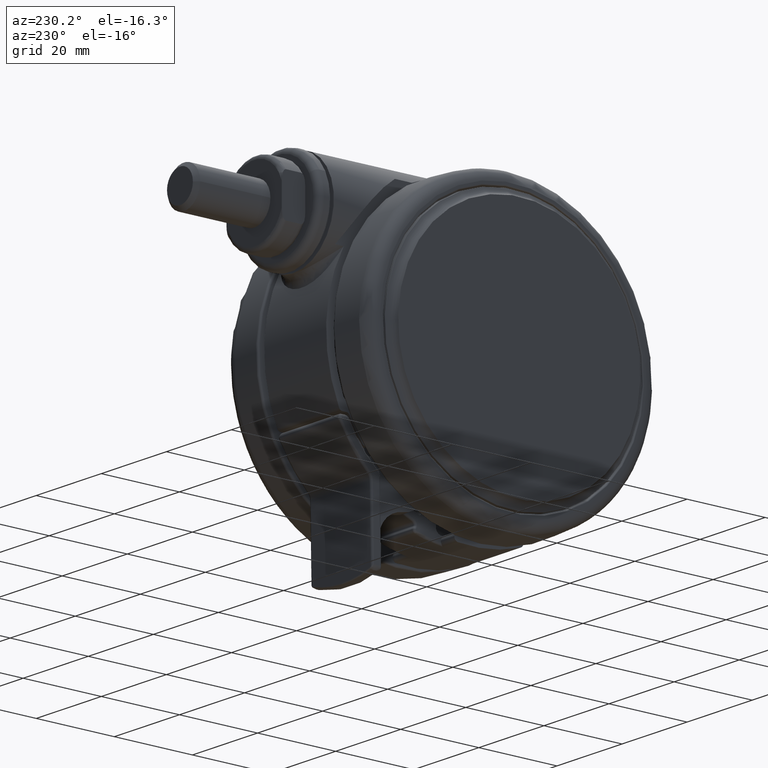
[diagram: clean part render]
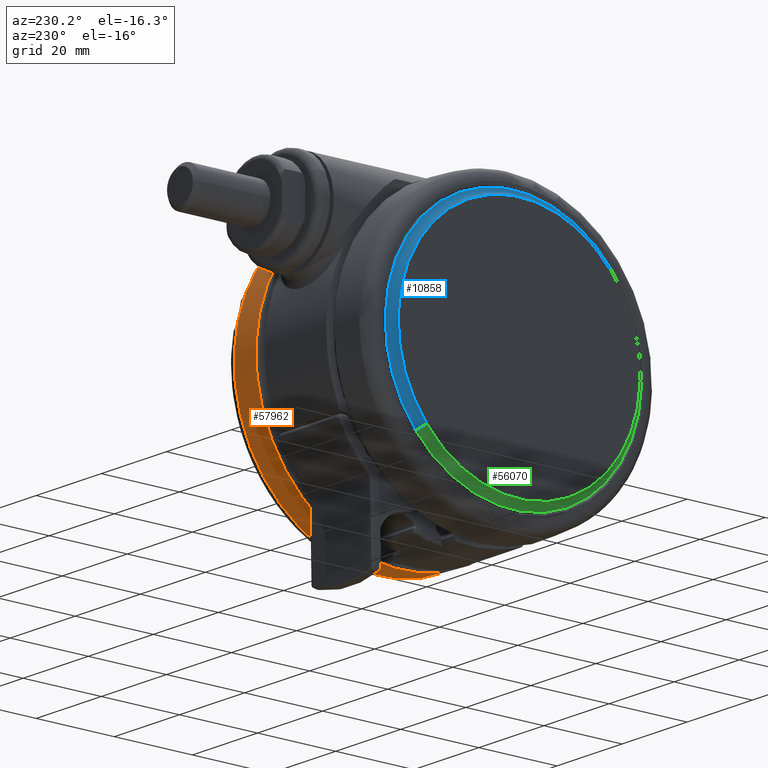
[diagram: same view with three faces highlighted in distinct colors, each labeled with its STEP entity id]
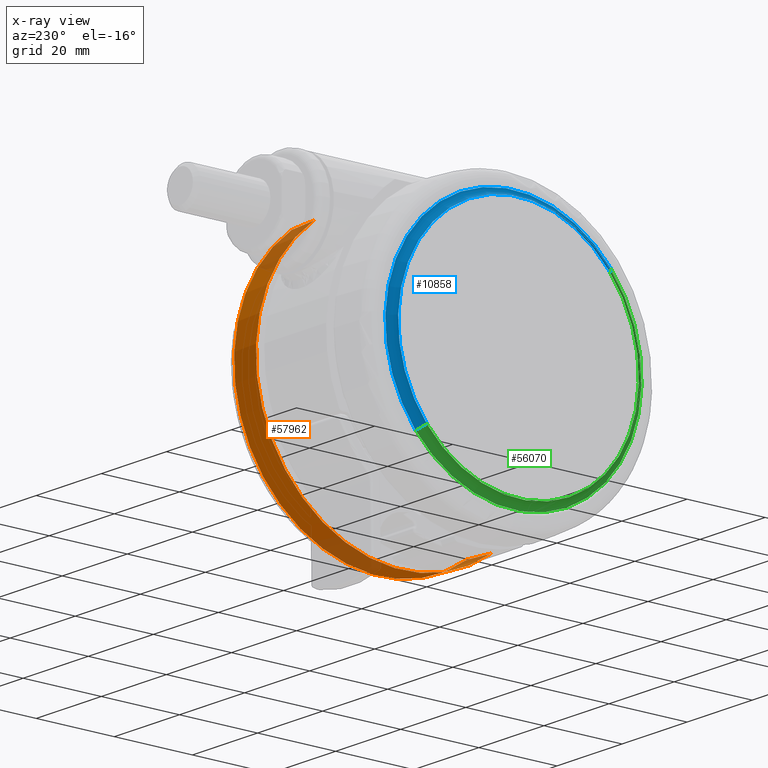
[diagram: x-ray of the same camera — body ghosted, the three highlighted faces saturated]
A machine part, auxiliary view with three faces highlighted in distinct colors.
The next image is the same camera in x-ray (body ghosted, the three faces saturated) — at least one of them is partly hidden behind the body in this view.
Their STEP definitions:

[orange] entity #57962 — the highlighted conical surface has half-angle 3 deg.
#2968 = CARTESIAN_POINT ( 'NONE',  ( -1.467404372658370700E-013, 37.12628851691043500, -4.642992131271127800 ) ) ;
#8844 = ORIENTED_EDGE ( 'NONE', *, *, #24183, .F. ) ;
#8915 = ORIENTED_EDGE ( 'NONE', *, *, #49488, .F. ) ;
#11804 = CIRCLE ( 'NONE', #66705, 37.50000000000000700 ) ;
#12846 = VECTOR ( 'NONE', #26358, 1000.000000000000100 ) ;
#14741 = DIRECTION ( 'NONE',  ( 0.0000000000000000000, 0.0000000000000000000, 1.000000000000000000 ) ) ;
#15458 = CARTESIAN_POINT ( 'NONE',  ( 6.453171330633721100E-014, -37.49999999999996400, -11.77383202187847600 ) ) ;
#21284 = DIRECTION ( 'NONE',  ( 0.0000000000000000000, 0.0000000000000000000, 1.000000000000000000 ) ) ;
#24183 = EDGE_CURVE ( 'NONE', #69655, #40656, #70456, .T. ) ;
#25060 = VECTOR ( 'NONE', #40124, 1000.000000000000100 ) ;
#26358 = DIRECTION ( 'NONE',  ( 1.481666882735434000E-016, -0.05233595624293731200, -0.9986295347545742800 ) ) ;
#27557 = CARTESIAN_POINT ( 'NONE',  ( -1.523908656500265200E-013, 37.50000000000005000, -11.77383202187847600 ) ) ;
#28587 = CARTESIAN_POINT ( 'NONE',  ( -4.163336342344337000E-014, 4.163336342344337000E-014, -4.642992131271127800 ) ) ;
#33860 = VERTEX_POINT ( 'NONE', #15458 ) ;
#33913 = ORIENTED_EDGE ( 'NONE', *, *, #49795, .T. ) ;
#40124 = DIRECTION ( 'NONE',  ( -1.545759944028662900E-016, 0.05233595624293731200, -0.9986295347545742800 ) ) ;
#40656 = VERTEX_POINT ( 'NONE', #27557 ) ;
#41186 = FACE_OUTER_BOUND ( 'NONE', #63360, .T. ) ;
#43016 = CIRCLE ( 'NONE', #64308, 37.12628851691040000 ) ;
#43111 = LINE ( 'NONE', #54718, #12846 ) ;
#48839 = CARTESIAN_POINT ( 'NONE',  ( -4.163336342344337000E-014, 4.163336342344337000E-014, -11.77383202187847600 ) ) ;
#49488 = EDGE_CURVE ( 'NONE', #52232, #69655, #43016, .T. ) ;
#49795 = EDGE_CURVE ( 'NONE', #33860, #40656, #11804, .T. ) ;
#50086 = ORIENTED_EDGE ( 'NONE', *, *, #68594, .T. ) ;
#51232 = DIRECTION ( 'NONE',  ( 0.0000000000000000000, 0.0000000000000000000, -1.000000000000000000 ) ) ;
#52232 = VERTEX_POINT ( 'NONE', #67287 ) ;
#52747 = CONICAL_SURFACE ( 'NONE', #65989, 37.12628851691040000, 0.05235987755982334000 ) ;
#54556 = DIRECTION ( 'NONE',  ( -2.831068712794148000E-015, 1.000000000000000000, 0.0000000000000000000 ) ) ;
#54718 = CARTESIAN_POINT ( 'NONE',  ( 6.347371041895032700E-014, -37.12628851691035700, -4.642992131271127800 ) ) ;
#55355 = CARTESIAN_POINT ( 'NONE',  ( -4.163336342344337000E-014, 4.163336342344337000E-014, -4.642992131271127800 ) ) ;
#57283 = CARTESIAN_POINT ( 'NONE',  ( -1.512870963054826100E-013, 37.12628851691043500, -4.642992131271127800 ) ) ;
#57962 = ADVANCED_FACE ( 'NONE', ( #41186 ), #52747, .T. ) ;
#61056 = DIRECTION ( 'NONE',  ( -2.831068712794148000E-015, 1.000000000000000000, 0.0000000000000000000 ) ) ;
#63360 = EDGE_LOOP ( 'NONE', ( #8844, #8915, #50086, #33913 ) ) ;
#64308 = AXIS2_PLACEMENT_3D ( 'NONE', #55355, #21284, #61056 ) ;
#65989 = AXIS2_PLACEMENT_3D ( 'NONE', #28587, #51232, #68349 ) ;
#66705 = AXIS2_PLACEMENT_3D ( 'NONE', #48839, #14741, #54556 ) ;
#67287 = CARTESIAN_POINT ( 'NONE',  ( 5.892705137930479800E-014, -37.12628851691035700, -4.642992131271127800 ) ) ;
#68349 = DIRECTION ( 'NONE',  ( 2.831068712794148400E-015, -1.000000000000000000, 0.0000000000000000000 ) ) ;
#68594 = EDGE_CURVE ( 'NONE', #52232, #33860, #43111, .T. ) ;
#69655 = VERTEX_POINT ( 'NONE', #2968 ) ;
#70456 = LINE ( 'NONE', #57283, #25060 ) ;

[blue] entity #10858 — the highlighted toroidal blend (fillet) surface has major radius 33.1663 mm and minor (blend) radius 2.2 mm.
#2661 = EDGE_CURVE ( 'NONE', #25517, #73681, #65243, .T. ) ;
#6063 = AXIS2_PLACEMENT_3D ( 'NONE', #41617, #7489, #47339 ) ;
#7489 = DIRECTION ( 'NONE',  ( 0.0000000000000000000, 0.0000000000000000000, -1.000000000000000000 ) ) ;
#9074 = CARTESIAN_POINT ( 'NONE',  ( 6.938893903907228400E-015, 0.0000000000000000000, -48.08382838746730700 ) ) ;
#10858 = ADVANCED_FACE ( 'NONE', ( #59094 ), #15519, .F. ) ;
#15519 = TOROIDAL_SURFACE ( 'NONE', #67847, 33.16625847233755300, 2.200000000000000200 ) ;
#19771 = CARTESIAN_POINT ( 'NONE',  ( -33.11334810414143700, 1.872666117559304900, -48.08382838746730700 ) ) ;
#22185 = EDGE_CURVE ( 'NONE', #40390, #73681, #68951, .T. ) ;
#25485 = DIRECTION ( 'NONE',  ( 0.9984046928826705300, -0.05646298991251031500, 0.0000000000000000000 ) ) ;
#25517 = VERTEX_POINT ( 'NONE', #67993 ) ;
#27294 = CARTESIAN_POINT ( 'NONE',  ( 32.76357280385211400, -1.852885201671516000, -45.91190160355296300 ) ) ;
#29169 = CARTESIAN_POINT ( 'NONE',  ( 33.11334810414145100, -1.872666117559300900, -48.08382838746730700 ) ) ;
#33592 = DIRECTION ( 'NONE',  ( 0.0000000000000000000, 0.0000000000000000000, -1.000000000000000000 ) ) ;
#34752 = EDGE_CURVE ( 'NONE', #51684, #40390, #46589, .T. ) ;
#34877 = DIRECTION ( 'NONE',  ( -0.9984046928826705300, 0.05646298991251022500, 0.0000000000000000000 ) ) ;
#36038 = AXIS2_PLACEMENT_3D ( 'NONE', #19771, #59534, #25485 ) ;
#36497 = CARTESIAN_POINT ( 'NONE',  ( -30.95054547936278400, 1.750352687287819900, -47.69999999999990300 ) ) ;
#40390 = VERTEX_POINT ( 'NONE', #58856 ) ;
#41576 = ORIENTED_EDGE ( 'NONE', *, *, #22185, .T. ) ;
#41617 = CARTESIAN_POINT ( 'NONE',  ( 6.938893903907228400E-015, 0.0000000000000000000, -47.69999999999990300 ) ) ;
#44997 = ORIENTED_EDGE ( 'NONE', *, *, #70974, .F. ) ;
#46589 = CIRCLE ( 'NONE', #36038, 2.199999999999999700 ) ;
#47339 = DIRECTION ( 'NONE',  ( -0.9984046928826705300, 0.05646298991251030900, 0.0000000000000000000 ) ) ;
#51684 = VERTEX_POINT ( 'NONE', #36497 ) ;
#54625 = DIRECTION ( 'NONE',  ( 0.0000000000000000000, 0.0000000000000000000, -1.000000000000000000 ) ) ;
#55266 = CIRCLE ( 'NONE', #6063, 30.99999999999999600 ) ;
#57660 = ORIENTED_EDGE ( 'NONE', *, *, #34752, .T. ) ;
#58856 = CARTESIAN_POINT ( 'NONE',  ( -32.76357280385209900, 1.852885201671519800, -45.91190160355296300 ) ) ;
#59094 = FACE_OUTER_BOUND ( 'NONE', #71893, .T. ) ;
#59534 = DIRECTION ( 'NONE',  ( -0.05646298991251032200, -0.9984046928826707500, -0.0000000000000000000 ) ) ;
#60144 = AXIS2_PLACEMENT_3D ( 'NONE', #29169, #68922, #34877 ) ;
#60261 = AXIS2_PLACEMENT_3D ( 'NONE', #67677, #33592, #73413 ) ;
#65243 = CIRCLE ( 'NONE', #60144, 2.199999999999999700 ) ;
#66073 = DIRECTION ( 'NONE',  ( -0.9984046928826705300, 0.05646298991251030200, 0.0000000000000000000 ) ) ;
#67677 = CARTESIAN_POINT ( 'NONE',  ( 6.938893903907228400E-015, 0.0000000000000000000, -45.91190160355296300 ) ) ;
#67847 = AXIS2_PLACEMENT_3D ( 'NONE', #9074, #54625, #66073 ) ;
#67993 = CARTESIAN_POINT ( 'NONE',  ( 30.95054547936279800, -1.750352687287816100, -47.69999999999990300 ) ) ;
#68922 = DIRECTION ( 'NONE',  ( 0.05646298991251019700, 0.9984046928826707500, 0.0000000000000000000 ) ) ;
#68951 = CIRCLE ( 'NONE', #60261, 32.81592428140524500 ) ;
#70974 = EDGE_CURVE ( 'NONE', #51684, #25517, #55266, .T. ) ;
#71821 = ORIENTED_EDGE ( 'NONE', *, *, #2661, .F. ) ;
#71893 = EDGE_LOOP ( 'NONE', ( #71821, #44997, #57660, #41576 ) ) ;
#73413 = DIRECTION ( 'NONE',  ( -0.9984046928826706400, 0.05646298991251031500, 0.0000000000000000000 ) ) ;
#73681 = VERTEX_POINT ( 'NONE', #27294 ) ;

[green] entity #56070 — the highlighted toroidal blend (fillet) surface has major radius 33.1663 mm and minor (blend) radius 2.2 mm.
#2661 = EDGE_CURVE ( 'NONE', #25517, #73681, #65243, .T. ) ;
#3757 = CIRCLE ( 'NONE', #34324, 32.81592428140524500 ) ;
#11132 = FACE_OUTER_BOUND ( 'NONE', #11510, .T. ) ;
#11510 = EDGE_LOOP ( 'NONE', ( #27031, #68579, #69801, #17423 ) ) ;
#12049 = CARTESIAN_POINT ( 'NONE',  ( 6.938893903907228400E-015, 0.0000000000000000000, -45.91190160355296300 ) ) ;
#13146 = DIRECTION ( 'NONE',  ( -0.9984046928826705300, 0.05646298991251030200, 0.0000000000000000000 ) ) ;
#16390 = EDGE_CURVE ( 'NONE', #25517, #51684, #48361, .T. ) ;
#17423 = ORIENTED_EDGE ( 'NONE', *, *, #34752, .F. ) ;
#17827 = DIRECTION ( 'NONE',  ( -0.9984046928826706400, 0.05646298991251031500, 0.0000000000000000000 ) ) ;
#19771 = CARTESIAN_POINT ( 'NONE',  ( -33.11334810414143700, 1.872666117559304900, -48.08382838746730700 ) ) ;
#25485 = DIRECTION ( 'NONE',  ( 0.9984046928826705300, -0.05646298991251031500, 0.0000000000000000000 ) ) ;
#25517 = VERTEX_POINT ( 'NONE', #67993 ) ;
#27031 = ORIENTED_EDGE ( 'NONE', *, *, #16390, .F. ) ;
#27294 = CARTESIAN_POINT ( 'NONE',  ( 32.76357280385211400, -1.852885201671516000, -45.91190160355296300 ) ) ;
#29169 = CARTESIAN_POINT ( 'NONE',  ( 33.11334810414145100, -1.872666117559300900, -48.08382838746730700 ) ) ;
#29324 = EDGE_CURVE ( 'NONE', #73681, #40390, #3757, .T. ) ;
#32779 = DIRECTION ( 'NONE',  ( 0.0000000000000000000, 0.0000000000000000000, -1.000000000000000000 ) ) ;
#34324 = AXIS2_PLACEMENT_3D ( 'NONE', #12049, #51908, #17827 ) ;
#34752 = EDGE_CURVE ( 'NONE', #51684, #40390, #46589, .T. ) ;
#34877 = DIRECTION ( 'NONE',  ( -0.9984046928826705300, 0.05646298991251022500, 0.0000000000000000000 ) ) ;
#35815 = CARTESIAN_POINT ( 'NONE',  ( 6.938893903907228400E-015, 0.0000000000000000000, -48.08382838746730700 ) ) ;
#36038 = AXIS2_PLACEMENT_3D ( 'NONE', #19771, #59534, #25485 ) ;
#36497 = CARTESIAN_POINT ( 'NONE',  ( -30.95054547936278400, 1.750352687287819900, -47.69999999999990300 ) ) ;
#40390 = VERTEX_POINT ( 'NONE', #58856 ) ;
#44988 = TOROIDAL_SURFACE ( 'NONE', #54432, 33.16625847233755300, 2.200000000000000200 ) ;
#46589 = CIRCLE ( 'NONE', #36038, 2.199999999999999700 ) ;
#48361 = CIRCLE ( 'NONE', #52360, 30.99999999999999600 ) ;
#51684 = VERTEX_POINT ( 'NONE', #36497 ) ;
#51908 = DIRECTION ( 'NONE',  ( 0.0000000000000000000, 0.0000000000000000000, -1.000000000000000000 ) ) ;
#52360 = AXIS2_PLACEMENT_3D ( 'NONE', #66856, #32779, #72589 ) ;
#54432 = AXIS2_PLACEMENT_3D ( 'NONE', #35815, #64182, #13146 ) ;
#56070 = ADVANCED_FACE ( 'NONE', ( #11132 ), #44988, .F. ) ;
#58856 = CARTESIAN_POINT ( 'NONE',  ( -32.76357280385209900, 1.852885201671519800, -45.91190160355296300 ) ) ;
#59534 = DIRECTION ( 'NONE',  ( -0.05646298991251032200, -0.9984046928826707500, -0.0000000000000000000 ) ) ;
#60144 = AXIS2_PLACEMENT_3D ( 'NONE', #29169, #68922, #34877 ) ;
#64182 = DIRECTION ( 'NONE',  ( 0.0000000000000000000, 0.0000000000000000000, -1.000000000000000000 ) ) ;
#65243 = CIRCLE ( 'NONE', #60144, 2.199999999999999700 ) ;
#66856 = CARTESIAN_POINT ( 'NONE',  ( 6.938893903907228400E-015, 0.0000000000000000000, -47.69999999999990300 ) ) ;
#67993 = CARTESIAN_POINT ( 'NONE',  ( 30.95054547936279800, -1.750352687287816100, -47.69999999999990300 ) ) ;
#68579 = ORIENTED_EDGE ( 'NONE', *, *, #2661, .T. ) ;
#68922 = DIRECTION ( 'NONE',  ( 0.05646298991251019700, 0.9984046928826707500, 0.0000000000000000000 ) ) ;
#69801 = ORIENTED_EDGE ( 'NONE', *, *, #29324, .T. ) ;
#72589 = DIRECTION ( 'NONE',  ( -0.9984046928826705300, 0.05646298991251030900, 0.0000000000000000000 ) ) ;
#73681 = VERTEX_POINT ( 'NONE', #27294 ) ;